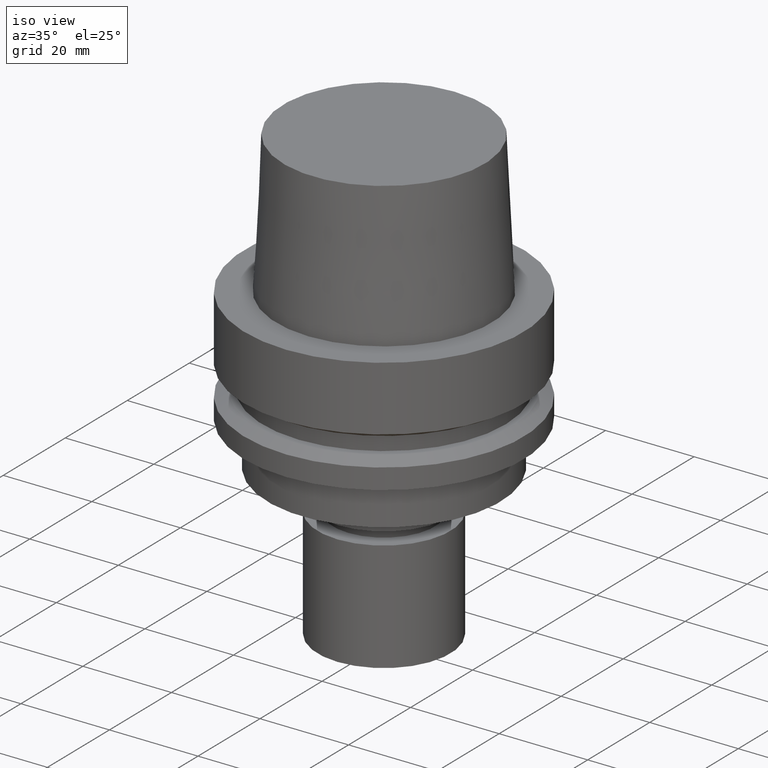
[diagram: clean part render]
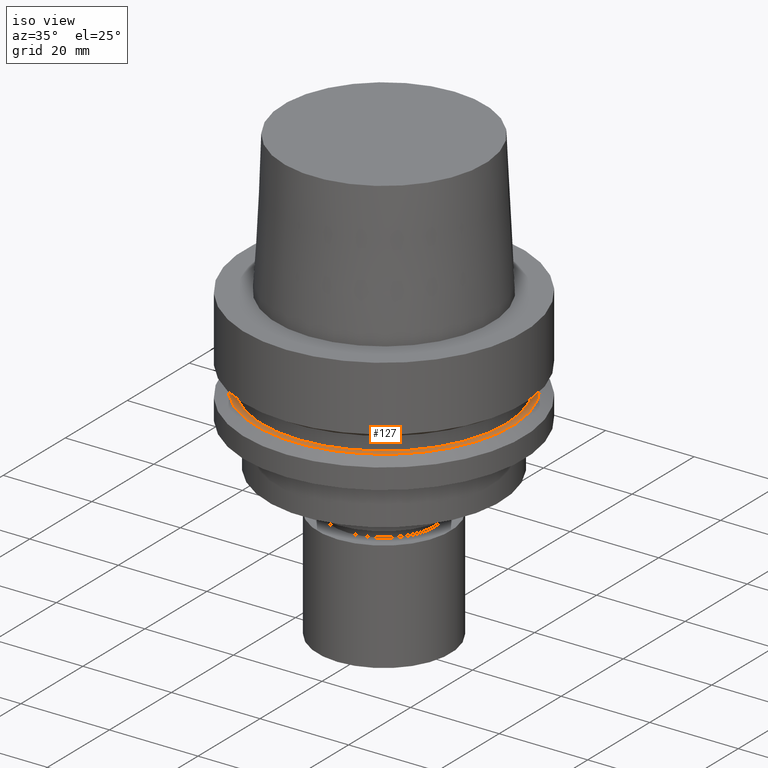
[diagram: same view with one face highlighted and labeled with its STEP entity id]
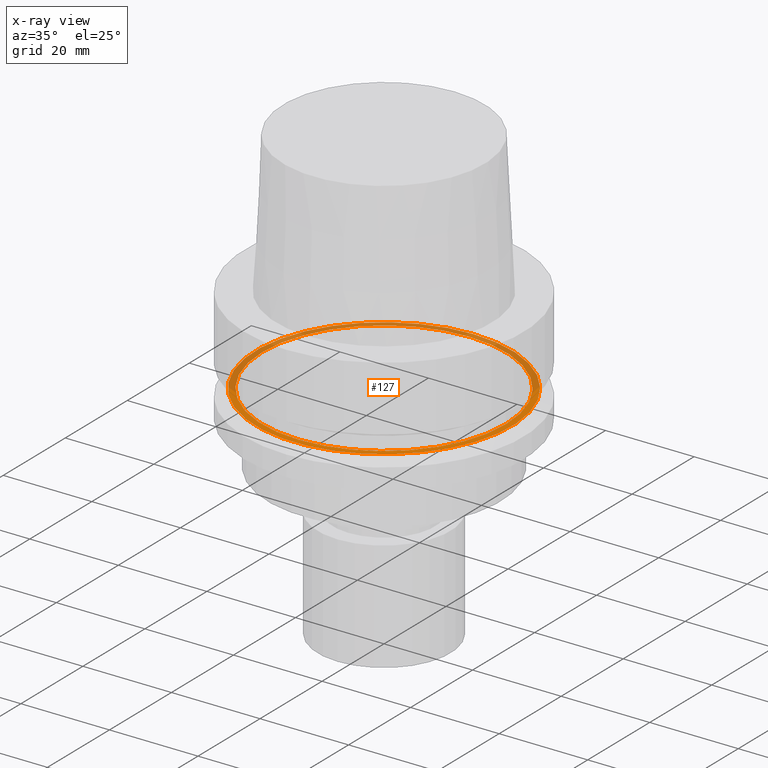
[diagram: x-ray of the same camera — body ghosted, the highlighted face saturated]
A machine part, iso view. The second image highlights one B-rep face of the part: STEP entity #127.
The next image is the same camera in x-ray: the body ghosted, the highlighted face saturated — about 51% of this face is hidden behind the body in this view.
In plain terms, the highlighted planar face has unit normal (-0, -0, 1).
Its self-contained STEP definition (entity closure, byte-faithful):
#127=ADVANCED_FACE('Unnamed[1]',(#291,#292),#293,.T.);
#145=EDGE_CURVE('Unnamed[1]',#321,#321,#322,.T.);
#179=EDGE_CURVE('Unnamed[1]',#372,#372,#373,.T.);
#291=FACE_BOUND('',#508,.T.);
#292=FACE_OUTER_BOUND('',#509,.T.);
#293=PLANE('',#510);
#321=VERTEX_POINT('',#545);
#322=CIRCLE('',#546,27.4999999999989);
#372=VERTEX_POINT('',#609);
#373=CIRCLE('',#610,28.8975952641919);
#508=EDGE_LOOP('',(#730));
#509=EDGE_LOOP('',(#731));
#510=AXIS2_PLACEMENT_3D('',#732,#733,#734);
#545=CARTESIAN_POINT('',(1.21699275665276E-015,27.4999999999989,-19.8750000000013));
#546=AXIS2_PLACEMENT_3D('',#765,#766,#767);
#609=CARTESIAN_POINT('',(1.21699275665268E-015,28.8975952641919,-19.875));
#610=AXIS2_PLACEMENT_3D('',#819,#820,#821);
#730=ORIENTED_EDGE('',*,*,#145,.F.);
#731=ORIENTED_EDGE('',*,*,#179,.T.);
#732=CARTESIAN_POINT('',(1.21699275665272E-015,28.1987976320954,-19.8750000000006));
#733=DIRECTION('',(-6.12323399573677E-017,-9.58463617675421E-013,1.0));
#734=DIRECTION('',(-5.86937972270006E-029,1.0,9.58463617675421E-013));
#765=CARTESIAN_POINT('',(1.21699275665276E-015,2.43398551330553E-015,-19.8750000000013));
#766=DIRECTION('',(-6.12323399573677E-017,-1.22464679914747E-016,1.0));
#767=DIRECTION('',(-1.23259516440788E-032,1.0,1.22464679914747E-016));
#819=CARTESIAN_POINT('',(1.21699275665268E-015,2.43398551330536E-015,-19.875));
#820=DIRECTION('',(-6.12323399573677E-017,-1.22464679914745E-016,1.0));
#821=DIRECTION('',(-1.23259516440785E-032,1.0,1.22464679914745E-016));